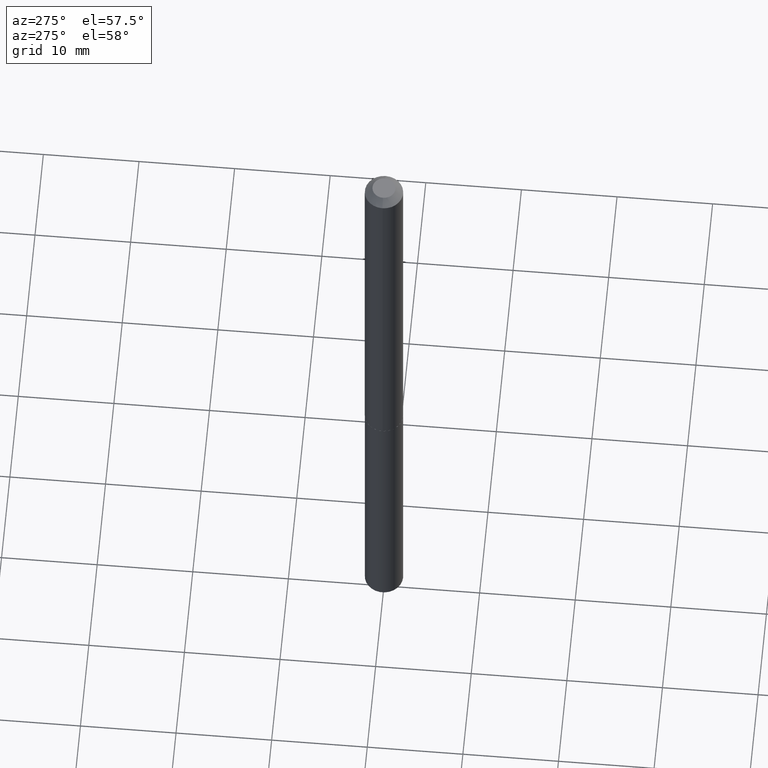
[diagram: clean part render]
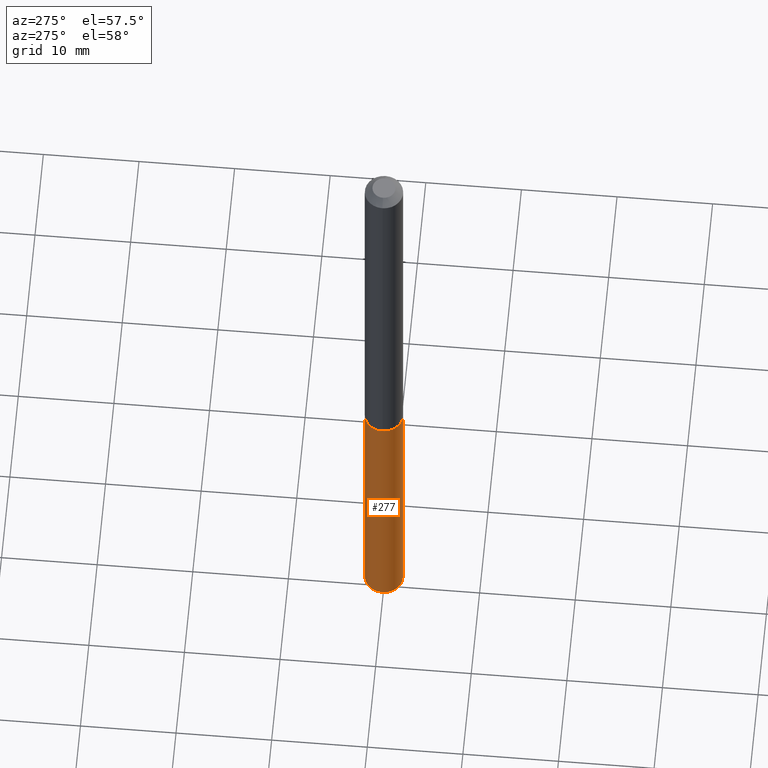
[diagram: same view with one face highlighted and labeled with its STEP entity id]
A machine part, auxiliary view. The second image highlights one B-rep face of the part: STEP entity #277.
In plain terms, the highlighted cylindrical surface (edge-blend (fillet) strip) has radius 2.0002 mm, axis along (-0, 0, 1).
Its self-contained STEP definition (entity closure, byte-faithful):
#11 = EDGE_LOOP ( 'NONE', ( #174, #381, #175, #254 ) ) ;
#19 = LINE ( 'NONE', #100, #66 ) ;
#22 = DIRECTION ( 'NONE',  ( -2.439100213155441770E-29, 3.500601526539472950E-15, 1.000000000000000000 ) ) ;
#28 = VERTEX_POINT ( 'NONE', #159 ) ;
#32 = VERTEX_POINT ( 'NONE', #317 ) ;
#40 = AXIS2_PLACEMENT_3D ( 'NONE', #322, #22, #204 ) ;
#61 = CARTESIAN_POINT ( 'NONE',  ( 4.236285612954512392E-29, -6.048293123277981078E-15, -1.732299999999999951 ) ) ;
#65 = AXIS2_PLACEMENT_3D ( 'NONE', #61, #255, #156 ) ;
#66 = VECTOR ( 'NONE', #223, 39.37007874015748143 ) ;
#76 = FACE_OUTER_BOUND ( 'NONE', #11, .T. ) ;
#100 = CARTESIAN_POINT ( 'NONE',  ( -5.499083108677509444E-16, -0.07875000000000602352, -1.732299999999999729 ) ) ;
#108 = CARTESIAN_POINT ( 'NONE',  ( -5.499083108677209677E-16, -0.07875000000001036726, -2.963437344051536915 ) ) ;
#127 = CARTESIAN_POINT ( 'NONE',  ( 5.595524044111210058E-16, 0.07874999999999393596, -1.732300000000000173 ) ) ;
#141 = AXIS2_PLACEMENT_3D ( 'NONE', #379, #167, #196 ) ;
#154 = EDGE_CURVE ( 'NONE', #28, #170, #250, .T. ) ;
#156 = DIRECTION ( 'NONE',  ( -6.982962677686265922E-15, -1.000000000000000000, 3.469013325287954477E-15 ) ) ;
#159 = CARTESIAN_POINT ( 'NONE',  ( 5.595524044111512783E-16, 0.07874999999999393596, -1.732300000000000173 ) ) ;
#167 = DIRECTION ( 'NONE',  ( -2.439100213155441770E-29, 3.500601526539472950E-15, 1.000000000000000000 ) ) ;
#170 = VERTEX_POINT ( 'NONE', #366 ) ;
#174 = ORIENTED_EDGE ( 'NONE', *, *, #307, .F. ) ;
#175 = ORIENTED_EDGE ( 'NONE', *, *, #318, .T. ) ;
#196 = DIRECTION ( 'NONE',  ( -6.982962677686265922E-15, -1.000000000000000000, 3.469013325287954477E-15 ) ) ;
#204 = DIRECTION ( 'NONE',  ( -6.982962677686264344E-15, -1.000000000000000000, 6.938026650575906587E-15 ) ) ;
#223 = DIRECTION ( 'NONE',  ( -2.439100213155441770E-29, 3.500601526539472556E-15, 1.000000000000000000 ) ) ;
#250 = CIRCLE ( 'NONE', #65, 0.07874999999999997280 ) ;
#254 = ORIENTED_EDGE ( 'NONE', *, *, #154, .F. ) ;
#255 = DIRECTION ( 'NONE',  ( -2.439100213155441770E-29, 3.500601526539472950E-15, 1.000000000000000000 ) ) ;
#267 = EDGE_CURVE ( 'NONE', #32, #299, #314, .T. ) ;
#277 = ADVANCED_FACE ( 'NONE', ( #76 ), #371, .T. ) ;
#299 = VERTEX_POINT ( 'NONE', #108 ) ;
#307 = EDGE_CURVE ( 'NONE', #32, #28, #347, .T. ) ;
#314 = CIRCLE ( 'NONE', #40, 0.07875000000000000056 ) ;
#315 = VECTOR ( 'NONE', #373, 39.37007874015748143 ) ;
#317 = CARTESIAN_POINT ( 'NONE',  ( 5.595524044111512783E-16, 0.07874999999998963385, -2.963437344051538247 ) ) ;
#318 = EDGE_CURVE ( 'NONE', #299, #170, #19, .T. ) ;
#322 = CARTESIAN_POINT ( 'NONE',  ( 7.239152971254241713E-29, -1.035801438924454465E-14, -2.963437344051537359 ) ) ;
#347 = LINE ( 'NONE', #127, #315 ) ;
#366 = CARTESIAN_POINT ( 'NONE',  ( -5.499083108677509444E-16, -0.07875000000000602352, -1.732299999999999729 ) ) ;
#371 = CYLINDRICAL_SURFACE ( 'NONE', #141, 0.07874999999999997280 ) ;
#373 = DIRECTION ( 'NONE',  ( -2.439100213155441770E-29, 3.500601526539472556E-15, 1.000000000000000000 ) ) ;
#379 = CARTESIAN_POINT ( 'NONE',  ( 4.236285612954512392E-29, -6.048293123277981078E-15, -1.732299999999999951 ) ) ;
#381 = ORIENTED_EDGE ( 'NONE', *, *, #267, .T. ) ;